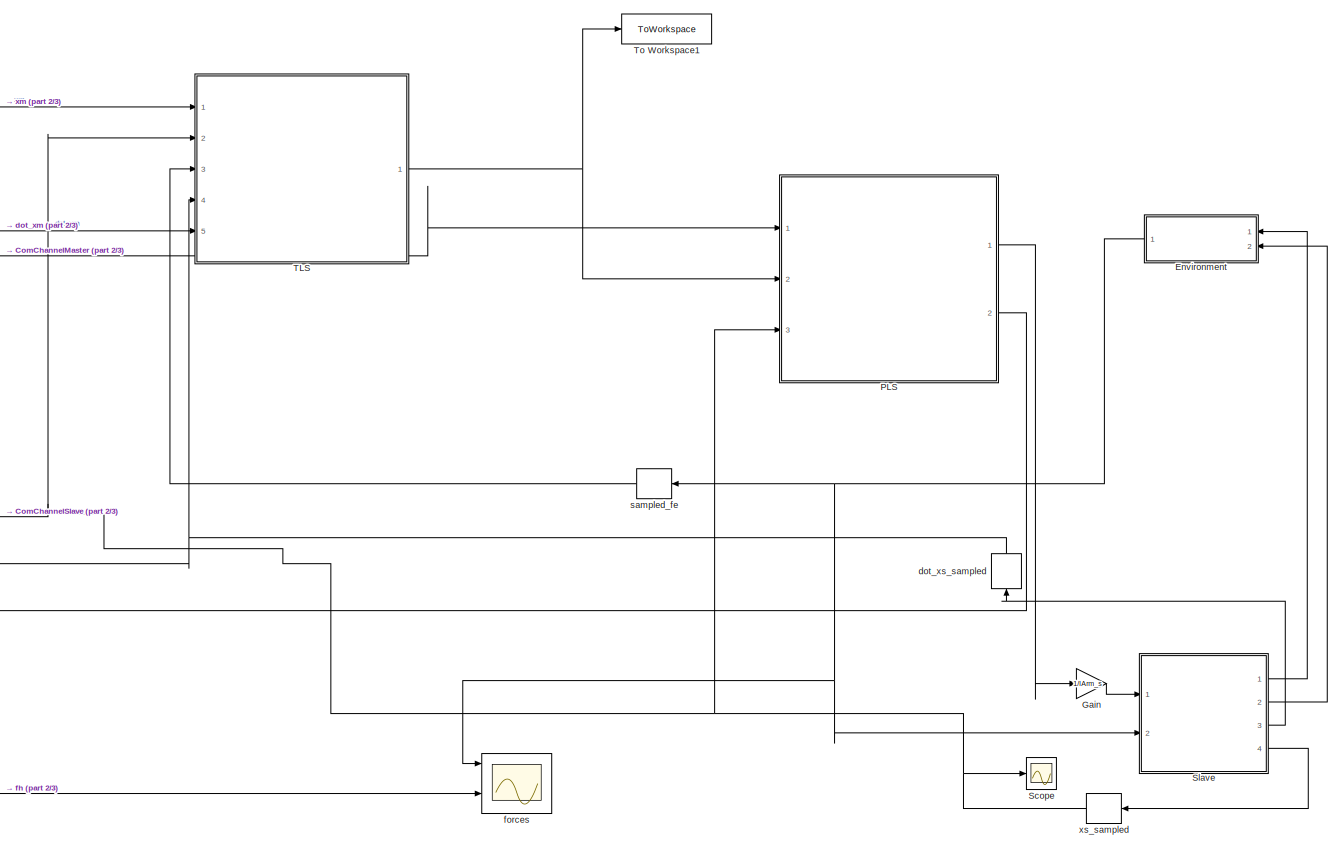
[diagram: root canvas - part 1/3, right side, full height]
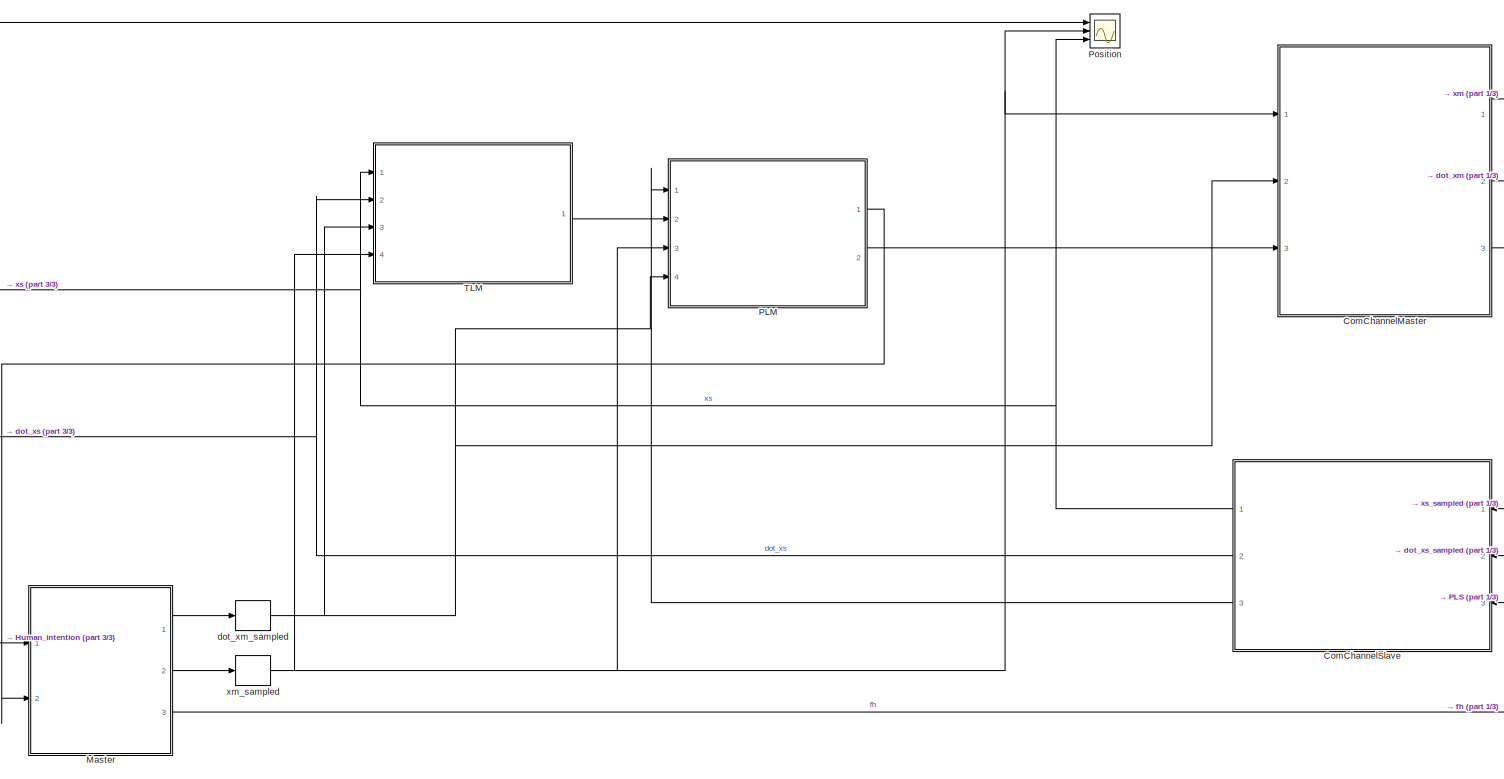
[diagram: root canvas - part 2/3, left side, full height]
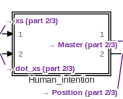
[diagram: root canvas - part 3/3, bottom left region]
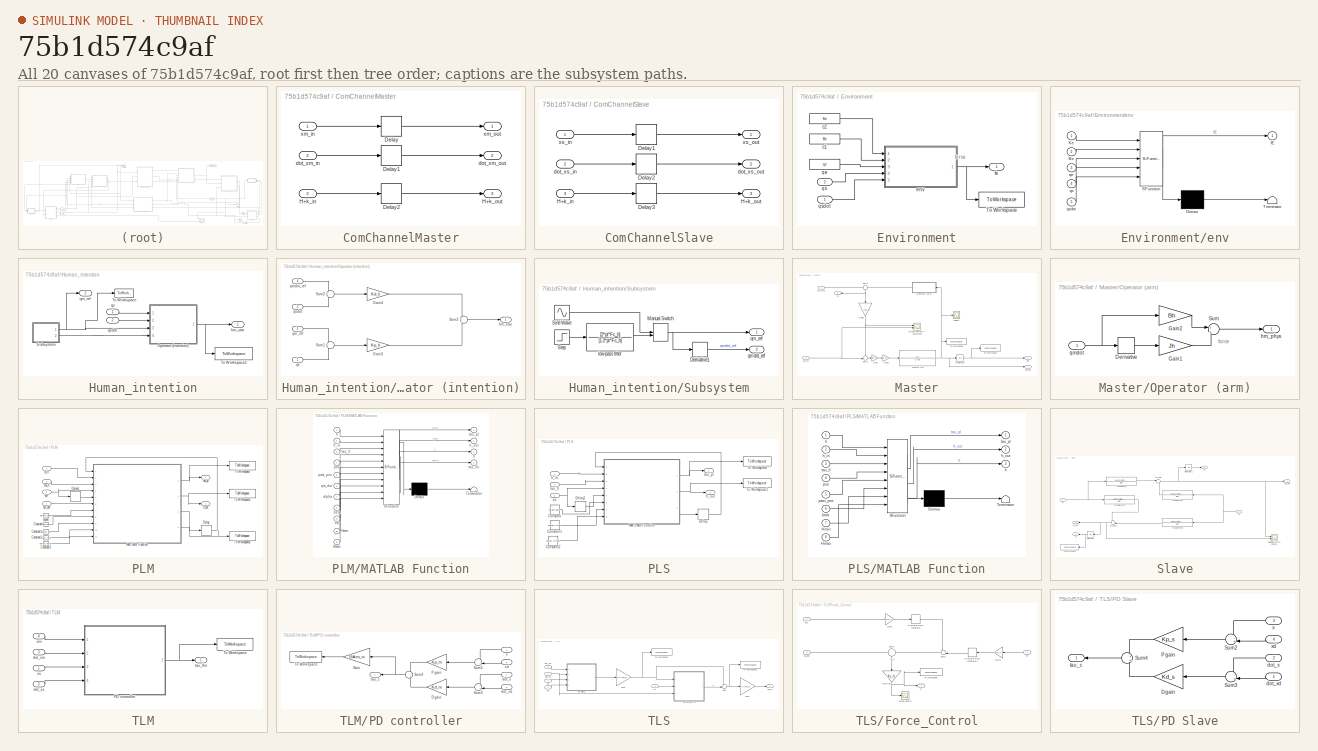
[diagram: thumbnail index - all 20 canvases of the model, root first then tree order]
MODEL slx_75b1d574c9af
KIND model
CONFIG AbsTol = auto
CONFIG EnableMultiTasking = off
CONFIG FixedStep = auto
CONFIG MaxStep = auto
CONFIG MinStep = auto
CONFIG RelTol = 1e-3
CONFIG SampleTimeConstraint = Unconstrained
CONFIG Solver = VariableStepAuto
CONFIG SolverName = VariableStepAuto
CONFIG StartTime = 0.0
CONFIG StopTime = 7
BLOCK [SubSystem] ComChannelMaster
  Ports = [3, 3]
  RequestExecContextInheritance = off
BLOCK [Delay] ComChannelMaster/Delay
  DelayLength = D
  InputPortMap = u0
  Ports = [1, 1]
  SampleTime = Ts
BLOCK [Delay] ComChannelMaster/Delay1
  DelayLength = D
  InputPortMap = u0
  Ports = [1, 1]
  SampleTime = Ts
BLOCK [Delay] ComChannelMaster/Delay2
  DelayLength = D
  InputPortMap = u0
  Ports = [1, 1]
  SampleTime = Ts
BLOCK [Inport] ComChannelMaster/H+k_in
  Port = 3
BLOCK [Outport] ComChannelMaster/H+k_out
  Port = 3
BLOCK [Inport] ComChannelMaster/dot_xm_in
  Port = 2
BLOCK [Outport] ComChannelMaster/dot_xm_out
  Port = 2
BLOCK [Inport] ComChannelMaster/xm_in
BLOCK [Outport] ComChannelMaster/xm_out
BLOCK [SubSystem] ComChannelSlave
  Ports = [3, 3]
  RequestExecContextInheritance = off
BLOCK [Delay] ComChannelSlave/Delay1
  DelayLength = D
  InputPortMap = u0
  Ports = [1, 1]
  SampleTime = Ts
BLOCK [Delay] ComChannelSlave/Delay2
  DelayLength = D
  InputPortMap = u0
  Ports = [1, 1]
  SampleTime = Ts
BLOCK [Delay] ComChannelSlave/Delay3
  DelayLength = D
  InputPortMap = u0
  Ports = [1, 1]
  SampleTime = Ts
BLOCK [Inport] ComChannelSlave/H+k_in
  Port = 3
BLOCK [Outport] ComChannelSlave/H+k_out
  Port = 3
BLOCK [Inport] ComChannelSlave/dot_xs_in
  Port = 2
BLOCK [Outport] ComChannelSlave/dot_xs_out
  Port = 2
BLOCK [Inport] ComChannelSlave/xs_in
BLOCK [Outport] ComChannelSlave/xs_out
BLOCK [SubSystem] Environment
  Ports = [2, 1]
  RequestExecContextInheritance = off
BLOCK [ToWorkspace] Environment/To Workspace
  FixptAsFi = on
  MaxDataPoints = inf
  Ports = [1]
  SampleTime = -1
  SaveFormat = Timeseries
  VariableName = fe
BLOCK [Constant] Environment/c1
  SampleTime = 0
  Value = Be
BLOCK [Constant] Environment/c2
  SampleTime = 0
  Value = Ke
BLOCK [SubSystem] Environment/env
  ErrorFcn = Stateflow.Translate.translate
  PermitHierarchicalResolution = ExplicitOnly
  Ports = [5, 1]
  RequestExecContextInheritance = off
  SFBlockType = MATLAB Function
  TreatAsAtomicUnit = on
BLOCK [Demux] Environment/env/ Demux 
  Outputs = 1
  Ports = [1, 1]
BLOCK [S-Function] Environment/env/ SFunction 
  EnableBusSupport = on
  FunctionName = sf_sfun
  PortCounts = [5 2]
  Ports = [5, 2]
  SFcnIsStateOwnerBlock = off
  SFunctionDeploymentMode = off
  Tag = Stateflow S-Function 9
BLOCK [Terminator] Environment/env/ Terminator 
BLOCK [Inport] Environment/env/Be
  Port = 2
BLOCK [Inport] Environment/env/Ke
BLOCK [Outport] Environment/env/fE
  VectorParamsAs1DForOutWhenUnconnected = off
BLOCK [Inport] Environment/env/qe
  Port = 3
BLOCK [Inport] Environment/env/qs
  Port = 4
BLOCK [Inport] Environment/env/qsdot
  Port = 5
BLOCK [Outport] Environment/fe
  VectorParamsAs1DForOutWhenUnconnected = off
BLOCK [Constant] Environment/qe
  SampleTime = 0
  Value = qe
BLOCK [Inport] Environment/qs
  Port = 2
BLOCK [Inport] Environment/qsdot
BLOCK [Gain] Gain
  Gain = 1/lArm_s
BLOCK [SubSystem] Human_intention
  Ports = [2, 2]
  RequestExecContextInheritance = off
BLOCK [SubSystem] Human_intention/Operator (intention)
  Ports = [4, 1]
  RequestExecContextInheritance = off
BLOCK [Gain] Human_intention/Operator (intention)/Gain3
  Gain = Kp_h
BLOCK [Gain] Human_intention/Operator (intention)/Gain4
  Gain = Kd_h
BLOCK [Sum] Human_intention/Operator (intention)/Sum1
  Inputs = +|-
  Ports = [2, 1]
BLOCK [Sum] Human_intention/Operator (intention)/Sum2
  Inputs = +|-
  Ports = [2, 1]
BLOCK [Sum] Human_intention/Operator (intention)/Sum3
  Inputs = +|+
  Ports = [2, 1]
BLOCK [Outport] Human_intention/Operator (intention)/hm_star
  VectorParamsAs1DForOutWhenUnconnected = off
BLOCK [Inport] Human_intention/Operator (intention)/qm_ref
  Port = 3
BLOCK [Inport] Human_intention/Operator (intention)/qmdot_ref
  Port = 4
BLOCK [Inport] Human_intention/Operator (intention)/qs
BLOCK [Inport] Human_intention/Operator (intention)/qsdot
  Port = 2
BLOCK [SubSystem] Human_intention/Subsystem
  Ports = [0, 2]
  RequestExecContextInheritance = off
BLOCK [Derivative] Human_intention/Subsystem/Derivative1
  CoefficientInTFapproximation = 0.001
BLOCK [ManualSwitch] Human_intention/Subsystem/Manual Switch
  CurrentSetting = 0
BLOCK [Sin] Human_intention/Subsystem/Sine Wave
  Ports = [0, 1]
  SampleTime = 0
BLOCK [Step] Human_intention/Subsystem/Step
  SampleTime = 0
BLOCK [TransferFcn] Human_intention/Subsystem/low-pass filter
  Denominator = [1 2*pi*Fc_h]
  Numerator = [2*pi*Fc_h]
BLOCK [Outport] Human_intention/Subsystem/qm_ref
BLOCK [Outport] Human_intention/Subsystem/qmdot_ref
  Port = 2
BLOCK [ToWorkspace] Human_intention/To Workspace
  FixptAsFi = on
  MaxDataPoints = inf
  Ports = [1]
  SampleTime = -1
  SaveFormat = Timeseries
  VariableName = qm_ref
BLOCK [ToWorkspace] Human_intention/To Workspace1
  FixptAsFi = on
  MaxDataPoints = inf
  Ports = [1]
  SampleTime = -1
  SaveFormat = Timeseries
  VariableName = fh
BLOCK [Outport] Human_intention/hm_star
BLOCK [Outport] Human_intention/qm_ref
  Port = 2
BLOCK [Inport] Human_intention/qs
BLOCK [Inport] Human_intention/qsdot
  Port = 2
BLOCK [SubSystem] Master
  Ports = [2, 3]
  RequestExecContextInheritance = off
BLOCK [Gain] Master/Gain
  Gain = Kt2c_m
BLOCK [Gain] Master/Gain1
  Gain = Kc2v_m
BLOCK [Gain] Master/Gain2
  Gain = lArm_m
  NameLocation = right
BLOCK [Integrator] Master/Integrator
  Ports = [1, 1]
BLOCK [SubSystem] Master/Operator (arm)
  Ports = [1, 1]
  RequestExecContextInheritance = off
BLOCK [Derivative] Master/Operator (arm)/Derivative
  CoefficientInTFapproximation = 0.001
BLOCK [Gain] Master/Operator (arm)/Gain1
  Gain = Jh
BLOCK [Gain] Master/Operator (arm)/Gain2
  Gain = Bh
BLOCK [Sum] Master/Operator (arm)/Sum
  Inputs = +|+
  Ports = [2, 1]
BLOCK [Outport] Master/Operator (arm)/hm_phys
  VectorParamsAs1DForOutWhenUnconnected = off
BLOCK [Inport] Master/Operator (arm)/qmdot
BLOCK [Sum] Master/Sum1
  Inputs = -+
  NameLocation = left
  Ports = [2, 1]
BLOCK [Sum] Master/Sum2
  Inputs = -+|
  Ports = [2, 1]
BLOCK [ToWorkspace] Master/To Workspace
  FixptAsFi = on
  MaxDataPoints = inf
  Ports = [1]
  SampleTime = -1
  SaveFormat = Timeseries
  VariableName = qm
BLOCK [ToWorkspace] Master/To Workspace1
  FixptAsFi = on
  MaxDataPoints = inf
  Ports = [1]
  SampleTime = -1
  SaveFormat = Timeseries
  VariableName = velocity1
BLOCK [TransferFcn] Master/Transfer Fcn
  Denominator = [J B]
BLOCK [Outport] Master/fh
  Port = 3
BLOCK [Inport] Master/hm_star
BLOCK [Outport] Master/qm
  Port = 2
BLOCK [Outport] Master/qmdot
BLOCK [Inport] Master/tau_m
  Port = 2
BLOCK [Scope] Master/torque operator // command
  Floating = off
  NumInputPorts = 2
  Ports = [2]
  ScopeSpecificationString = Simulink.scopes.TimeScopeBlockCfg('CurrentConfiguration', extmgr.ConfigurationSet(extmgr.Configuration('Core','General UI',true),extmgr.Configuration('Core','Source UI',true),extmgr.Configuration('Sources','WiredSimulink',true,'DataLoggingVariableName','ScopeData2'),extmgr.Configuration('Visuals','Time Domain',true,'SerializedDisplays',{struct('MinYLimReal','-3.53434','MaxYLimReal','0.39312','YLab...<+1476ch>
BLOCK [Scope] Master/velocity
  Floating = off
  NumInputPorts = 1
  Ports = [1]
  ScopeSpecificationString = Simulink.scopes.TimeScopeBlockCfg('CurrentConfiguration', extmgr.ConfigurationSet(extmgr.Configuration('Core','General UI',true),extmgr.Configuration('Core','Source UI',true),extmgr.Configuration('Sources','WiredSimulink',true),extmgr.Configuration('Visuals','Time Domain',true,'SerializedDisplays',{struct('MinYLimReal','-0.51211','MaxYLimReal','2.18407','YLabelReal','','MinYLimMag','0.00000','MaxY...<+1467ch>
BLOCK [SubSystem] PLM
  Ports = [4, 2]
  RequestExecContextInheritance = off
BLOCK [Constant] PLM/Constant
  Value = param.beta
BLOCK [Constant] PLM/Constant1
  Value = param.Hd
BLOCK [Constant] PLM/Constant2
  Value = param.Hmin
BLOCK [Constant] PLM/Constant3
  Value = param.Hmax
BLOCK [Delay] PLM/Delay
  DelayLength = 1
  InputPortMap = u0
  Ports = [1, 1]
  SampleTime = Ts
BLOCK [Delay] PLM/Delay1
  DelayLength = 1
  InputPortMap = u0
  Ports = [1, 1]
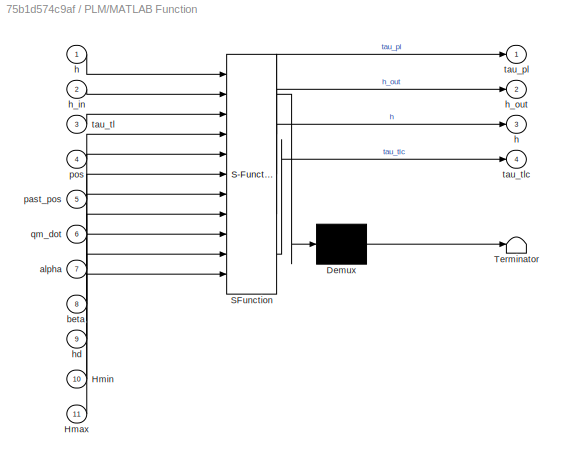
BLOCK [SubSystem] PLM/MATLAB Function
  ErrorFcn = Stateflow.Translate.translate
  PermitHierarchicalResolution = ExplicitOnly
  Ports = [11, 4]
  RequestExecContextInheritance = off
  SFBlockType = MATLAB Function
  SystemSampleTime = Ts
  TreatAsAtomicUnit = on
BLOCK [Demux] PLM/MATLAB Function/ Demux 
  Outputs = 1
  Ports = [1, 1]
BLOCK [S-Function] PLM/MATLAB Function/ SFunction 
  EnableBusSupport = on
  FunctionName = sf_sfun
  PortCounts = [11 5]
  Ports = [11, 5]
  SFcnIsStateOwnerBlock = off
  SFunctionDeploymentMode = off
  Tag = Stateflow S-Function 2
BLOCK [Terminator] PLM/MATLAB Function/ Terminator 
BLOCK [Inport] PLM/MATLAB Function/Hmax
  Port = 11
BLOCK [Inport] PLM/MATLAB Function/Hmin
  Port = 10
BLOCK [Inport] PLM/MATLAB Function/alpha
  Port = 7
BLOCK [Inport] PLM/MATLAB Function/beta
  Port = 8
BLOCK [Outport] PLM/MATLAB Function/h
  Port = 3
BLOCK [Inport] PLM/MATLAB Function/h 
BLOCK [Inport] PLM/MATLAB Function/h_in
  Port = 2
BLOCK [Outport] PLM/MATLAB Function/h_out
  Port = 2
BLOCK [Inport] PLM/MATLAB Function/hd
  Port = 9
BLOCK [Inport] PLM/MATLAB Function/past_pos
  Port = 5
BLOCK [Inport] PLM/MATLAB Function/pos
  Port = 4
BLOCK [Inport] PLM/MATLAB Function/qm_dot
  Port = 6
BLOCK [Outport] PLM/MATLAB Function/tau_pl
BLOCK [Inport] PLM/MATLAB Function/tau_tl
  Port = 3
BLOCK [Outport] PLM/MATLAB Function/tau_tlc
  Port = 4
BLOCK [ToWorkspace] PLM/To Workspace
  FixptAsFi = on
  MaxDataPoints = inf
  Ports = [1]
  SampleTime = -1
  SaveFormat = Timeseries
  VariableName = tau_plm
BLOCK [ToWorkspace] PLM/To Workspace1
  FixptAsFi = on
  MaxDataPoints = inf
  Ports = [1]
  SampleTime = -1
  SaveFormat = Timeseries
  VariableName = tank_m
BLOCK [ToWorkspace] PLM/To Workspace2
  FixptAsFi = on
  MaxDataPoints = inf
  Ports = [1]
  SampleTime = -1
  SaveFormat = Timeseries
  VariableName = tau_tlc
BLOCK [Constant] PLM/alpha
  Value = param.alpha
BLOCK [Inport] PLM/h_in
BLOCK [Outport] PLM/h_out
  Port = 2
BLOCK [Inport] PLM/qm
  Port = 3
BLOCK [Inport] PLM/qm_dot
  Port = 4
BLOCK [Outport] PLM/tau_pl
BLOCK [Inport] PLM/tau_tl
  Port = 2
BLOCK [SubSystem] PLS
  Ports = [3, 2]
  RequestExecContextInheritance = off
BLOCK [Constant] PLS/Constant
  Value = param.beta
BLOCK [Constant] PLS/Constant1
  Value = param.Hmin
BLOCK [Constant] PLS/Constant2
  Value = param.Hmax
BLOCK [Delay] PLS/Delay
  DelayLength = 1
  InputPortMap = u0
  Ports = [1, 1]
  SampleTime = Ts
BLOCK [Delay] PLS/Delay1
  DelayLength = 1
  InputPortMap = u0
  Ports = [1, 1]
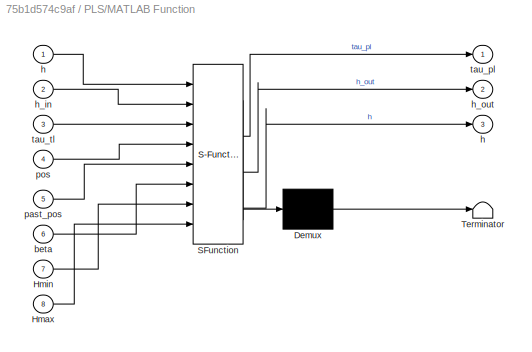
BLOCK [SubSystem] PLS/MATLAB Function
  ErrorFcn = Stateflow.Translate.translate
  PermitHierarchicalResolution = ExplicitOnly
  Ports = [8, 3]
  RequestExecContextInheritance = off
  SFBlockType = MATLAB Function
  SystemSampleTime = Ts
  TreatAsAtomicUnit = on
BLOCK [Demux] PLS/MATLAB Function/ Demux 
  Outputs = 1
  Ports = [1, 1]
BLOCK [S-Function] PLS/MATLAB Function/ SFunction 
  EnableBusSupport = on
  FunctionName = sf_sfun
  PortCounts = [8 4]
  Ports = [8, 4]
  SFcnIsStateOwnerBlock = off
  SFunctionDeploymentMode = off
  Tag = Stateflow S-Function 1
BLOCK [Terminator] PLS/MATLAB Function/ Terminator 
BLOCK [Inport] PLS/MATLAB Function/Hmax
  Port = 8
BLOCK [Inport] PLS/MATLAB Function/Hmin
  Port = 7
BLOCK [Inport] PLS/MATLAB Function/beta
  Port = 6
BLOCK [Outport] PLS/MATLAB Function/h
  Port = 3
BLOCK [Inport] PLS/MATLAB Function/h 
BLOCK [Inport] PLS/MATLAB Function/h_in
  Port = 2
BLOCK [Outport] PLS/MATLAB Function/h_out
  Port = 2
BLOCK [Inport] PLS/MATLAB Function/past_pos
  Port = 5
BLOCK [Inport] PLS/MATLAB Function/pos
  Port = 4
BLOCK [Outport] PLS/MATLAB Function/tau_pl
BLOCK [Inport] PLS/MATLAB Function/tau_tl
  Port = 3
BLOCK [ToWorkspace] PLS/To Workspace
  FixptAsFi = on
  MaxDataPoints = inf
  Ports = [1]
  SampleTime = -1
  SaveFormat = Timeseries
  VariableName = tau_pls
BLOCK [ToWorkspace] PLS/To Workspace1
  FixptAsFi = on
  MaxDataPoints = inf
  Ports = [1]
  SampleTime = -1
  SaveFormat = Timeseries
  VariableName = tank_s
BLOCK [Inport] PLS/h_in
BLOCK [Outport] PLS/h_out
  Port = 2
BLOCK [Inport] PLS/qs
  Port = 3
BLOCK [Outport] PLS/tau_pl
BLOCK [Inport] PLS/tau_tl
  Port = 2
BLOCK [Scope] Position
  Floating = off
  NumInputPorts = 3
  Ports = [3]
  ScopeSpecificationString = Simulink.scopes.TimeScopeBlockCfg('CurrentConfiguration', extmgr.ConfigurationSet(extmgr.Configuration('Core','General UI',true),extmgr.Configuration('Core','Source UI',true),extmgr.Configuration('Sources','WiredSimulink',true,'DataLoggingVariableName','ScopeData1'),extmgr.Configuration('Visuals','Time Domain',true,'SerializedDisplays',{struct('MinYLimReal','-0.125','MaxYLimReal','1.125','YLabelRe...<+1522ch>
BLOCK [Scope] Scope
  Floating = off
  NumInputPorts = 1
  Ports = [1]
  ScopeSpecificationString = Simulink.scopes.TimeScopeBlockCfg('CurrentConfiguration', extmgr.ConfigurationSet(extmgr.Configuration('Core','General UI',true),extmgr.Configuration('Core','Source UI',true),extmgr.Configuration('Sources','WiredSimulink',true,'DataLoggingVariableName','ScopeData1'),extmgr.Configuration('Visuals','Time Domain',true,'SerializedDisplays',{struct('MinYLimReal','-1.29789','MaxYLimReal','11.68103','YLa...<+1403ch>
BLOCK [SubSystem] Slave
  Ports = [2, 4]
  RequestExecContextInheritance = off
BLOCK [Integrator] Slave/Integrator
  Ports = [1, 1]
BLOCK [Integrator] Slave/Integrator1
  Ports = [1, 1]
BLOCK [ToWorkspace] Slave/To Workspace
  FixptAsFi = on
  MaxDataPoints = inf
  Ports = [1]
  SampleTime = -1
  SaveFormat = Timeseries
  VariableName = xs
BLOCK [TransferFcn] Slave/Transfer Fcn
  Denominator = [J B]
  Numerator = [lArm_s*Kt2c_s*Kc2v_s]
BLOCK [TransferFcn] Slave/Transfer Fcn1
  Denominator = [J B]
  Numerator = [lArm_s*Kt2c_s*Kc2v_s]
BLOCK [TransferFcn] Slave/Transfer Fcn2
  Denominator = [J B]
  Numerator = [lArm_s*Kt2c_s*Kc2v_s]
BLOCK [TransferFcn] Slave/Transfer Fcn3
  Denominator = [J B]
  Numerator = [lArm_s*Kt2c_s*Kc2v_s]
BLOCK [Scope] Slave/Velocities_Force_Control
  Floating = off
  NumInputPorts = 2
  Ports = [2]
  ScopeSpecificationString = Simulink.scopes.TimeScopeBlockCfg('CurrentConfiguration', extmgr.ConfigurationSet(extmgr.Configuration('Core','General UI',true),extmgr.Configuration('Core','Source UI',true),extmgr.Configuration('Sources','WiredSimulink',true,'DataLoggingVariableName','ScopeData1'),extmgr.Configuration('Visuals','Time Domain',true,'SerializedDisplays',{struct('MinYLimReal','-13790357962298524322105848143031196893...<+2468ch>
BLOCK [Inport] Slave/fa
BLOCK [Inport] Slave/fe
  Port = 2
BLOCK [Outport] Slave/xe
  Port = 2
BLOCK [Outport] Slave/xe_dot
  NameLocation = top
BLOCK [Sum] Slave/xe_dot2
  Inputs = |+-
  Ports = [2, 1]
BLOCK [Outport] Slave/xs
  Port = 4
BLOCK [Outport] Slave/xs_dot
  NameLocation = top
  Port = 3
BLOCK [Sum] Slave/xs_dot_2
  Inputs = +-|
  Ports = [2, 1]
BLOCK [SubSystem] TLM
  Ports = [4, 1]
  RequestExecContextInheritance = off
BLOCK [SubSystem] TLM/PD controller
  Ports = [4, 1]
  RequestExecContextInheritance = off
BLOCK [Gain] TLM/PD controller/D gain
  Gain = Kd_m
BLOCK [Gain] TLM/PD controller/Gain
  Gain = 1/lArm_m
BLOCK [Gain] TLM/PD controller/P gain
  Gain = Kp_m
BLOCK [Sum] TLM/PD controller/Sum2
  Inputs = -+|
  Ports = [2, 1]
BLOCK [Sum] TLM/PD controller/Sum3
  Inputs = -+|
  Ports = [2, 1]
BLOCK [Sum] TLM/PD controller/Sum4
  Ports = [2, 1]
BLOCK [ToWorkspace] TLM/PD controller/To Workspace
  FixptAsFi = on
  MaxDataPoints = inf
  Ports = [1]
  SampleTime = -1
  SaveFormat = Timeseries
  VariableName = fcm
BLOCK [Inport] TLM/PD controller/dot_x
  Port = 2
BLOCK [Inport] TLM/PD controller/dot_xd
  Port = 4
BLOCK [Outport] TLM/PD controller/tau_c
  VectorParamsAs1DForOutWhenUnconnected = off
BLOCK [Inport] TLM/PD controller/x
BLOCK [Inport] TLM/PD controller/xd
  Port = 3
BLOCK [ToWorkspace] TLM/To Workspace
  FixptAsFi = on
  MaxDataPoints = inf
  Ports = [1]
  SampleTime = -1
  SaveFormat = Timeseries
  VariableName = tau_tlm
BLOCK [Inport] TLM/dot_xm
  Port = 3
BLOCK [Inport] TLM/dot_xs
  Port = 2
BLOCK [Outport] TLM/tau_tlm
BLOCK [Inport] TLM/xm
  Port = 4
BLOCK [Inport] TLM/xs
BLOCK [SubSystem] TLS
  Ports = [5, 1]
  RequestExecContextInheritance = off
BLOCK [Gain] TLS/Fcs1
  Gain = 1/lArm_s
BLOCK [Gain] TLS/Fcs2
  Gain = lArm_s
BLOCK [SubSystem] TLS/Force_Control
  Ports = [3, 1]
  RequestExecContextInheritance = off
BLOCK [DiscreteIntegrator] TLS/Force_Control/Discrete-Time Integrator
  ICPrevOutput = DiscIntNeverNeededParam
  ICPrevScaledInput = DiscIntNeverNeededParam
  InitialConditionSetting = Auto
  Ports = [1, 1]
  SampleTime = Ts
BLOCK [DiscreteIntegrator] TLS/Force_Control/Discrete-Time Integrator1
  ICPrevOutput = DiscIntNeverNeededParam
  ICPrevScaledInput = DiscIntNeverNeededParam
  InitialConditionSetting = Auto
  Ports = [1, 1]
  SampleTime = Ts
BLOCK [Inport] TLS/Force_Control/Fcs
BLOCK [Scope] TLS/Force_Control/Force_control
  Floating = off
  NumInputPorts = 1
  Ports = [1]
  ScopeSpecificationString = Simulink.scopes.TimeScopeBlockCfg('CurrentConfiguration', extmgr.ConfigurationSet(extmgr.Configuration('Core','General UI',true),extmgr.Configuration('Core','Source UI',true),extmgr.Configuration('Sources','WiredSimulink',true,'DataLoggingVariableName','ScopeData1'),extmgr.Configuration('Visuals','Time Domain',true,'SerializedDisplays',{struct('MinYLimReal','-4.54285','MaxYLimReal','1.24957','YLab...<+1413ch>
BLOCK [Gain] TLS/Force_Control/Gain
  Gain = (lArm_s*Kt2c_s*Kc2v_s)/J_r
BLOCK [Gain] TLS/Force_Control/Gain1
  Gain = (lArm_s*Kt2c_s*Kc2v_s)/J_r
BLOCK [Gain] TLS/Force_Control/Multiply
  Gain = Kv_fc
  NameLocation = right
BLOCK [Sum] TLS/Force_Control/Sum2
  Inputs = +-|
  Ports = [2, 1]
BLOCK [Sum] TLS/Force_Control/Sum3
  Inputs = -|+
  NameLocation = right
  Ports = [2, 1]
BLOCK [ToWorkspace] TLS/Force_Control/To Workspace
  FixptAsFi = on
  MaxDataPoints = inf
  Ports = [1]
  SampleTime = -1
  SaveFormat = Timeseries
  VariableName = fc
BLOCK [Outport] TLS/Force_Control/fc
BLOCK [Inport] TLS/Force_Control/fe
  Port = 2
BLOCK [Inport] TLS/Force_Control/xa_dot
  Port = 3
BLOCK [SubSystem] TLS/PD Slave
  Ports = [4, 1]
  RequestExecContextInheritance = off
BLOCK [Gain] TLS/PD Slave/D gain
  Gain = Kd_s
BLOCK [Gain] TLS/PD Slave/P gain
  Gain = Kp_s
BLOCK [Sum] TLS/PD Slave/Sum2
  Inputs = -+|
  Ports = [2, 1]
BLOCK [Sum] TLS/PD Slave/Sum3
  Inputs = -+|
  Ports = [2, 1]
BLOCK [Sum] TLS/PD Slave/Sum4
  Ports = [2, 1]
BLOCK [Inport] TLS/PD Slave/dot_x
  Port = 2
BLOCK [Inport] TLS/PD Slave/dot_xd
BLOCK [Outport] TLS/PD Slave/tau_c
  VectorParamsAs1DForOutWhenUnconnected = off
BLOCK [Inport] TLS/PD Slave/x
  Port = 3
BLOCK [Inport] TLS/PD Slave/xd
  Port = 4
BLOCK [Sum] TLS/Sum
  Inputs = ++|
  Ports = [2, 1]
BLOCK [ToWorkspace] TLS/To Workspace
  FixptAsFi = on
  MaxDataPoints = inf
  Ports = [1]
  SampleTime = -1
  SaveFormat = Timeseries
  VariableName = fd
BLOCK [ToWorkspace] TLS/To Workspace1
  FixptAsFi = on
  MaxDataPoints = inf
  Ports = [1]
  SampleTime = -1
  SaveFormat = Timeseries
  VariableName = fa
BLOCK [Inport] TLS/dot_xm
  Port = 5
BLOCK [Inport] TLS/dot_xs
  Port = 4
BLOCK [Inport] TLS/fe
  Port = 3
BLOCK [Outport] TLS/tau_a
BLOCK [Inport] TLS/xm
BLOCK [Inport] TLS/xs
  Port = 2
BLOCK [ToWorkspace] To Workspace1
  FixptAsFi = on
  MaxDataPoints = inf
  Ports = [1]
  SampleTime = -1
  SaveFormat = Timeseries
  VariableName = tau_a
BLOCK [ZeroOrderHold] dot_xm_sampled
  SampleTime = Ts
BLOCK [ZeroOrderHold] dot_xs_sampled
  NameLocation = left
  SampleTime = Ts
BLOCK [Scope] forces
  Floating = off
  NumInputPorts = 5
  Ports = [5]
  ScopeSpecificationString = Simulink.scopes.TimeScopeBlockCfg('CurrentConfiguration', extmgr.ConfigurationSet(extmgr.Configuration('Core','General UI',true),extmgr.Configuration('Core','Source UI',true),extmgr.Configuration('Sources','WiredSimulink',true,'DataLoggingVariableName','ScopeData1'),extmgr.Configuration('Visuals','Time Domain',true,'SerializedDisplays',{struct('MinYLimReal','-35.36143','MaxYLimReal','4.09359','YLa...<+1505ch>
BLOCK [ZeroOrderHold] sampled_fe
  SampleTime = -1
BLOCK [ZeroOrderHold] xm_sampled
  SampleTime = Ts
BLOCK [ZeroOrderHold] xs_sampled
  SampleTime = Ts
ANNOTATION Environment: force
ANNOTATION Master/Operator (arm): force
ANNOTATION TLS/Force_Control: tau_a
LINE ComChannelMaster/Delay1:1 -> ComChannelMaster/dot_xm_out:1
LINE ComChannelMaster/Delay2:1 -> ComChannelMaster/H+k_out:1
LINE ComChannelMaster/Delay:1 -> ComChannelMaster/xm_out:1
LINE ComChannelMaster/H+k_in:1 -> ComChannelMaster/Delay2:1
LINE ComChannelMaster/dot_xm_in:1 -> ComChannelMaster/Delay1:1
LINE ComChannelMaster/xm_in:1 -> ComChannelMaster/Delay:1
LINE ComChannelMaster:1 -> TLS:1
LINE ComChannelMaster:2 -> TLS:5
LINE ComChannelMaster:3 -> PLS:1
LINE ComChannelSlave/Delay1:1 -> ComChannelSlave/xs_out:1
LINE ComChannelSlave/Delay2:1 -> ComChannelSlave/dot_xs_out:1
LINE ComChannelSlave/Delay3:1 -> ComChannelSlave/H+k_out:1
LINE ComChannelSlave/H+k_in:1 -> ComChannelSlave/Delay3:1
LINE ComChannelSlave/dot_xs_in:1 -> ComChannelSlave/Delay2:1
LINE ComChannelSlave/xs_in:1 -> ComChannelSlave/Delay1:1
NET ComChannelSlave:1 -> Human_intention:1, Position:3, TLM:1
NET ComChannelSlave:2 -> Human_intention:2, TLM:2
LINE ComChannelSlave:3 -> PLM:1
LINE Environment/c1:1 -> Environment/env:2
LINE Environment/c2:1 -> Environment/env:1
NET Environment/env:1 -> Environment/To Workspace:1, Environment/fe:1
LINE Environment/qe:1 -> Environment/env:3
LINE Environment/qs:1 -> Environment/env:4
LINE Environment/qsdot:1 -> Environment/env:5
NET Environment:1 -> Slave:2, forces:1, sampled_fe:1
LINE Gain:1 -> Slave:1
LINE Human_intention/Operator (intention)/Gain3:1 -> Human_intention/Operator (intention)/Sum3:2
LINE Human_intention/Operator (intention)/Gain4:1 -> Human_intention/Operator (intention)/Sum3:1
LINE Human_intention/Operator (intention)/Sum1:1 -> Human_intention/Operator (intention)/Gain3:1
LINE Human_intention/Operator (intention)/Sum2:1 -> Human_intention/Operator (intention)/Gain4:1
LINE Human_intention/Operator (intention)/Sum3:1 -> Human_intention/Operator (intention)/hm_star:1
LINE Human_intention/Operator (intention)/qm_ref:1 -> Human_intention/Operator (intention)/Sum1:1
LINE Human_intention/Operator (intention)/qmdot_ref:1 -> Human_intention/Operator (intention)/Sum2:1
LINE Human_intention/Operator (intention)/qs:1 -> Human_intention/Operator (intention)/Sum1:2
LINE Human_intention/Operator (intention)/qsdot:1 -> Human_intention/Operator (intention)/Sum2:2
NET Human_intention/Operator (intention):1 -> Human_intention/To Workspace1:1, Human_intention/hm_star:1
LINE Human_intention/Subsystem/Derivative1:1 -> Human_intention/Subsystem/qmdot_ref:1
NET Human_intention/Subsystem/Manual Switch:1 -> Human_intention/Subsystem/Derivative1:1, Human_intention/Subsystem/qm_ref:1
LINE Human_intention/Subsystem/Sine Wave:1 -> Human_intention/Subsystem/Manual Switch:1
LINE Human_intention/Subsystem/Step:1 -> Human_intention/Subsystem/low-pass filter:1
LINE Human_intention/Subsystem/low-pass filter:1 -> Human_intention/Subsystem/Manual Switch:2
NET Human_intention/Subsystem:1 -> Human_intention/Operator (intention):3, Human_intention/To Workspace:1, Human_intention/qm_ref:1
LINE Human_intention/Subsystem:2 -> Human_intention/Operator (intention):4
LINE Human_intention/qs:1 -> Human_intention/Operator (intention):1
LINE Human_intention/qsdot:1 -> Human_intention/Operator (intention):2
LINE Human_intention:1 -> Master:1
LINE Human_intention:2 -> Position:1
LINE Master/Gain1:1 -> Master/Transfer Fcn:1
NET Master/Gain2:1 -> Master/Sum2:1, Master/torque operator // command:1
LINE Master/Gain:1 -> Master/Gain1:1
NET Master/Integrator:1 -> Master/To Workspace:1, Master/qm:1
LINE Master/Operator (arm)/Derivative:1 -> Master/Operator (arm)/Gain1:1
LINE Master/Operator (arm)/Gain1:1 -> Master/Operator (arm)/Sum:2
LINE Master/Operator (arm)/Gain2:1 -> Master/Operator (arm)/Sum:1
LINE Master/Operator (arm)/Sum:1 -> Master/Operator (arm)/hm_phys:1
NET Master/Operator (arm)/qmdot:1 -> Master/Operator (arm)/Derivative:1, Master/Operator (arm)/Gain2:1
LINE Master/Operator (arm):1 -> Master/Sum1:2
NET Master/Sum1:1 -> Master/Gain2:1, Master/fh:1
LINE Master/Sum2:1 -> Master/Gain:1
NET Master/Transfer Fcn:1 -> Master/Integrator:1, Master/Operator (arm):1, Master/To Workspace1:1, Master/qmdot:1, Master/velocity:1
LINE Master/hm_star:1 -> Master/Sum1:1
NET Master/tau_m:1 -> Master/Sum2:2, Master/torque operator // command:2
LINE Master:1 -> dot_xm_sampled:1
LINE Master:2 -> xm_sampled:1
LINE Master:3 -> forces:4
LINE PLM/Constant1:1 -> PLM/MATLAB Function:9
LINE PLM/Constant2:1 -> PLM/MATLAB Function:10
LINE PLM/Constant3:1 -> PLM/MATLAB Function:11
LINE PLM/Constant:1 -> PLM/MATLAB Function:8
LINE PLM/Delay1:1 -> PLM/MATLAB Function:5
LINE PLM/Delay:1 -> PLM/MATLAB Function:1
NET PLM/MATLAB Function:1 -> PLM/To Workspace:1, PLM/tau_pl:1
NET PLM/MATLAB Function:2 -> PLM/To Workspace1:1, PLM/h_out:1
LINE PLM/MATLAB Function:3 -> PLM/Delay:1
LINE PLM/MATLAB Function:4 -> PLM/To Workspace2:1
LINE PLM/alpha:1 -> PLM/MATLAB Function:7
LINE PLM/h_in:1 -> PLM/MATLAB Function:2
NET PLM/qm:1 -> PLM/Delay1:1, PLM/MATLAB Function:4
LINE PLM/qm_dot:1 -> PLM/MATLAB Function:6
LINE PLM/tau_tl:1 -> PLM/MATLAB Function:3
LINE PLM:1 -> Master:2
LINE PLM:2 -> ComChannelMaster:3
LINE PLS/Constant1:1 -> PLS/MATLAB Function:7
LINE PLS/Constant2:1 -> PLS/MATLAB Function:8
LINE PLS/Constant:1 -> PLS/MATLAB Function:6
LINE PLS/Delay1:1 -> PLS/MATLAB Function:5
LINE PLS/Delay:1 -> PLS/MATLAB Function:1
NET PLS/MATLAB Function:1 -> PLS/To Workspace:1, PLS/tau_pl:1
NET PLS/MATLAB Function:2 -> PLS/To Workspace1:1, PLS/h_out:1
LINE PLS/MATLAB Function:3 -> PLS/Delay:1
LINE PLS/h_in:1 -> PLS/MATLAB Function:2
NET PLS/qs:1 -> PLS/Delay1:1, PLS/MATLAB Function:4
LINE PLS/tau_tl:1 -> PLS/MATLAB Function:3
LINE PLS:1 -> Gain:1
LINE PLS:2 -> ComChannelSlave:3
LINE Slave/Integrator1:1 -> Slave/xe:1
NET Slave/Integrator:1 -> Slave/To Workspace:1, Slave/xs:1
LINE Slave/Transfer Fcn1:1 -> Slave/xe_dot2:2
LINE Slave/Transfer Fcn2:1 -> Slave/xs_dot_2:1
LINE Slave/Transfer Fcn3:1 -> Slave/xs_dot_2:2
LINE Slave/Transfer Fcn:1 -> Slave/xe_dot2:1
NET Slave/fa:1 -> Slave/Transfer Fcn2:1, Slave/Transfer Fcn:1
NET Slave/fe:1 -> Slave/Transfer Fcn1:1, Slave/Transfer Fcn3:1
NET Slave/xe_dot2:1 -> Slave/Integrator1:1, Slave/Velocities_Force_Control:1, Slave/xe_dot:1
NET Slave/xs_dot_2:1 -> Slave/Integrator:1, Slave/Velocities_Force_Control:2, Slave/xs_dot:1
LINE Slave:1 -> Environment:1
LINE Slave:2 -> Environment:2
LINE Slave:3 -> dot_xs_sampled:1
LINE Slave:4 -> xs_sampled:1
LINE TLM/PD controller/D gain:1 -> TLM/PD controller/Sum4:2
LINE TLM/PD controller/Gain:1 -> TLM/PD controller/To Workspace:1
LINE TLM/PD controller/P gain:1 -> TLM/PD controller/Sum4:1
LINE TLM/PD controller/Sum2:1 -> TLM/PD controller/P gain:1
LINE TLM/PD controller/Sum3:1 -> TLM/PD controller/D gain:1
NET TLM/PD controller/Sum4:1 -> TLM/PD controller/Gain:1, TLM/PD controller/tau_c:1
LINE TLM/PD controller/dot_x:1 -> TLM/PD controller/Sum3:1
LINE TLM/PD controller/dot_xd:1 -> TLM/PD controller/Sum3:2
LINE TLM/PD controller/x:1 -> TLM/PD controller/Sum2:1
LINE TLM/PD controller/xd:1 -> TLM/PD controller/Sum2:2
NET TLM/PD controller:1 -> TLM/To Workspace:1, TLM/tau_tlm:1
LINE TLM/dot_xm:1 -> TLM/PD controller:2
LINE TLM/dot_xs:1 -> TLM/PD controller:4
LINE TLM/xm:1 -> TLM/PD controller:1
LINE TLM/xs:1 -> TLM/PD controller:3
LINE TLM:1 -> PLM:2
NET TLS/Fcs1:1 -> TLS/Force_Control:1, TLS/Sum:1, TLS/To Workspace:1
LINE TLS/Fcs2:1 -> TLS/tau_a:1
LINE TLS/Force_Control/Discrete-Time Integrator1:1 -> TLS/Force_Control/Sum2:2
LINE TLS/Force_Control/Discrete-Time Integrator:1 -> TLS/Force_Control/Sum2:1
LINE TLS/Force_Control/Fcs:1 -> TLS/Force_Control/Gain:1
LINE TLS/Force_Control/Gain1:1 -> TLS/Force_Control/Discrete-Time Integrator1:1
LINE TLS/Force_Control/Gain:1 -> TLS/Force_Control/Discrete-Time Integrator:1
NET TLS/Force_Control/Multiply:1 -> TLS/Force_Control/Force_control:1, TLS/Force_Control/To Workspace:1, TLS/Force_Control/fc:1
LINE TLS/Force_Control/Sum2:1 -> TLS/Force_Control/Sum3:2
LINE TLS/Force_Control/Sum3:1 -> TLS/Force_Control/Multiply:1
LINE TLS/Force_Control/fe:1 -> TLS/Force_Control/Gain1:1
LINE TLS/Force_Control/xa_dot:1 -> TLS/Force_Control/Sum3:1
LINE TLS/Force_Control:1 -> TLS/Sum:2
LINE TLS/PD Slave/D gain:1 -> TLS/PD Slave/Sum4:2
LINE TLS/PD Slave/P gain:1 -> TLS/PD Slave/Sum4:1
LINE TLS/PD Slave/Sum2:1 -> TLS/PD Slave/P gain:1
LINE TLS/PD Slave/Sum3:1 -> TLS/PD Slave/D gain:1
LINE TLS/PD Slave/Sum4:1 -> TLS/PD Slave/tau_c:1
LINE TLS/PD Slave/dot_x:1 -> TLS/PD Slave/Sum3:1
LINE TLS/PD Slave/dot_xd:1 -> TLS/PD Slave/Sum3:2
LINE TLS/PD Slave/x:1 -> TLS/PD Slave/Sum2:1
LINE TLS/PD Slave/xd:1 -> TLS/PD Slave/Sum2:2
LINE TLS/PD Slave:1 -> TLS/Fcs1:1
NET TLS/Sum:1 -> TLS/Fcs2:1, TLS/To Workspace1:1
LINE TLS/dot_xm:1 -> TLS/PD Slave:1
NET TLS/dot_xs:1 -> TLS/Force_Control:3, TLS/PD Slave:2
LINE TLS/fe:1 -> TLS/Force_Control:2
LINE TLS/xm:1 -> TLS/PD Slave:4
LINE TLS/xs:1 -> TLS/PD Slave:3
NET TLS:1 -> PLS:2, To Workspace1:1
NET dot_xm_sampled:1 -> ComChannelMaster:2, PLM:4, TLM:3
NET dot_xs_sampled:1 -> ComChannelSlave:2, TLS:4
LINE sampled_fe:1 -> TLS:3
NET xm_sampled:1 -> ComChannelMaster:1, PLM:3, Position:2, TLM:4
NET xs_sampled:1 -> ComChannelSlave:1, PLS:3, Scope:1, TLS:2
note: NET lines group one-source signal fan-out (src -> all destinations, sorted); 1:1 wires keep LINE
CHART PLS/MATLAB Function states=1 transitions=1
  STATE_LABEL 'eML_blk_kernel()'
  STATE_LABEL 'SCRIPT:\nfunction [tau_pl, h_out, h] = fcn(h, h_in, tau_tl, pos, past_pos,beta,Hmin,Hmax)\n\ndelta_q = (pos - past_pos); \ndelta_hi = delta_q * tau_tl; \n\nh = h + h_in; \n\nif h - delta_hi > Hmin\n    tau_pl = tau_tl; \n    h_tilde = h - delta_hi; \n    h_out = beta * h_tilde; \n    h = h_tilde - h_out; \nelse \n    \n    if delta_q ~= 0\n        tau_pl =  sign(tau_tl) * abs(h - Hmin/ delta_q)\n    else\n        t...<+109ch>'
CHART PLM/MATLAB Function states=1 transitions=1
  STATE_LABEL 'eML_blk_kernel()'
  STATE_LABEL 'SCRIPT:\nfunction [tau_pl, h_out, h,tau_tlc] = fcn(h, h_in, tau_tl, pos, past_pos,qm_dot,alpha,beta,hd,Hmin,Hmax)\n\ndelta_q = (pos - past_pos)\ndelta_hi = delta_q * tau_tl;\n\nh = h + h_in\n\nif h - delta_hi > Hmin\n    tau_pl = tau_tl\n    h_tilde = h - delta_hi\n    h_out = beta * h_tilde\n    h = h_tilde - h_out\nelse\n    if delta_q ~= 0\n        tau_pl =  sign(tau_tl) * abs(h - Hmin/ delta_q)\n    else\n    ...<+208ch>'
CHART Environment/env states=1 transitions=1
  STATE_LABEL 'eML_blk_kernel()'
  STATE_LABEL 'SCRIPT:\nfunction fE  = environment(Ke, Be, qe, qs, qsdot)\nif qs > qe\n   fE = Ke * (qs - qe) + Be * qsdot;\nelse\n   fE = 0;\nend\n'
CHART  states=0 transitions=0
CHART  states=0 transitions=0
CHART  states=0 transitions=0
